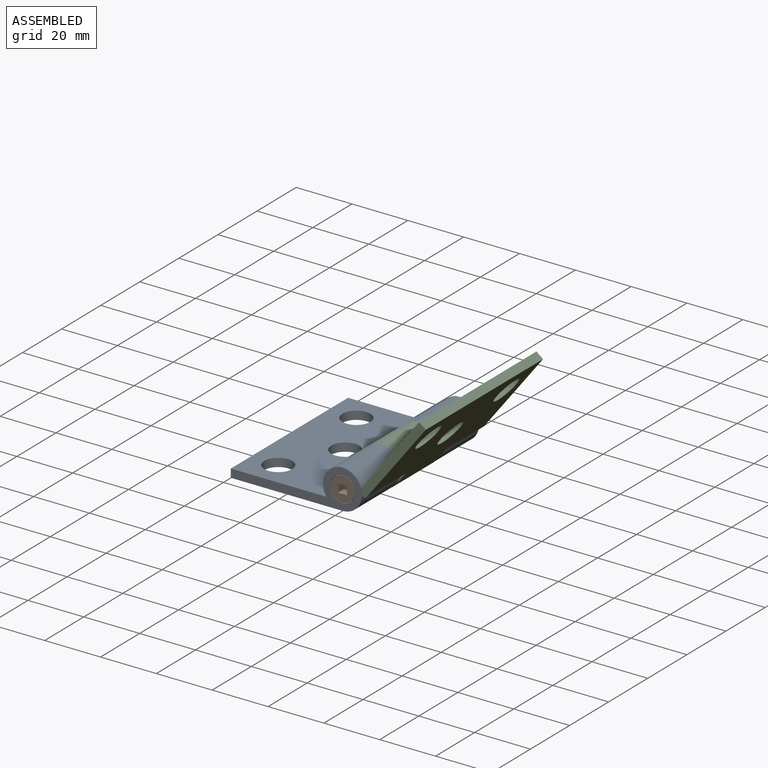
[diagram: assembled view]
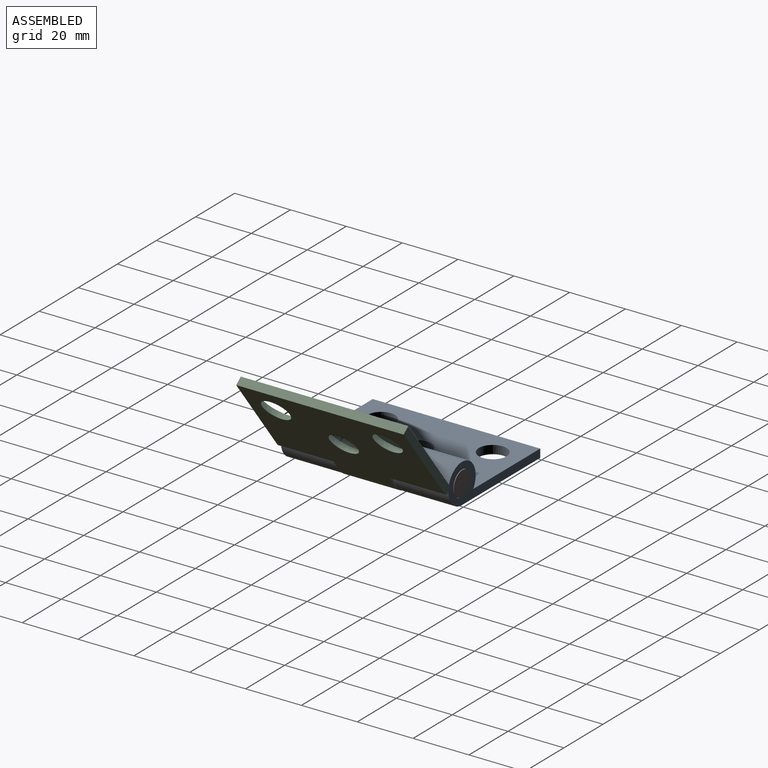
[diagram: assembled view, second angle]
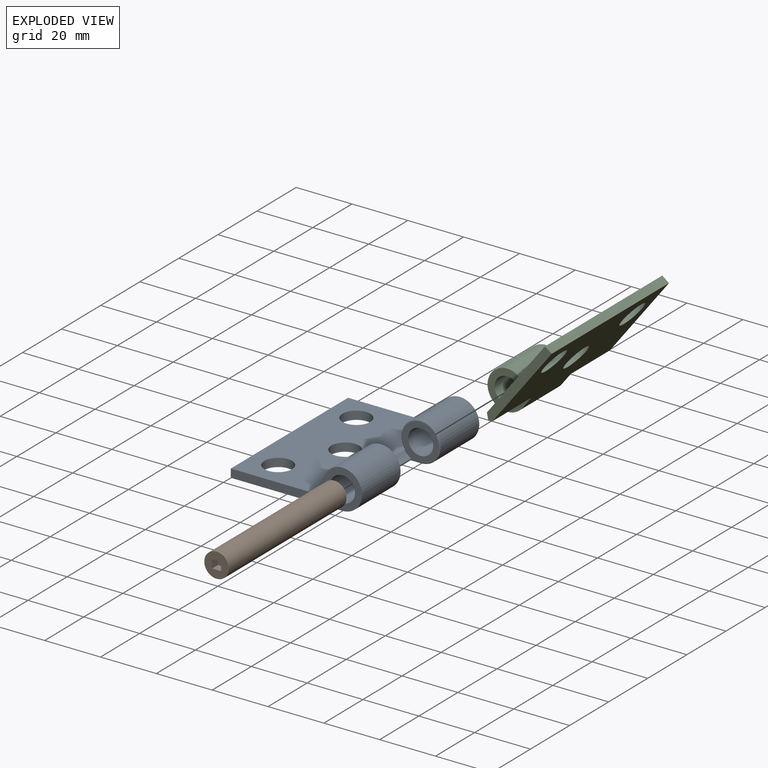
[diagram: exploded view]
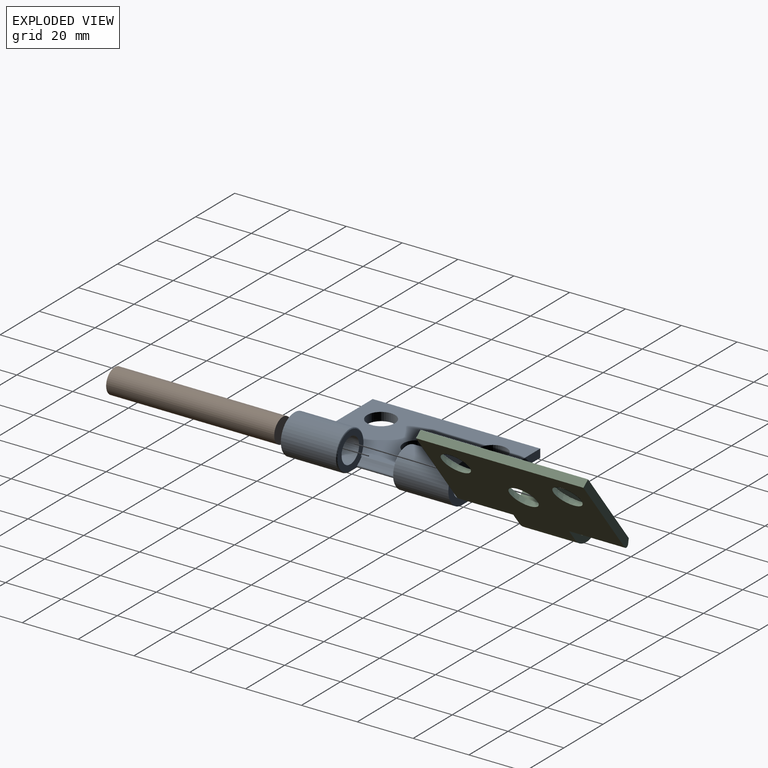
[diagram: exploded view, second angle]
ASSEMBLY  parts=3 mates=2
PART A: 21 faces, bbox 47.6x60x15.2 mm
  f0: plane 60x40mm, normal (0,0,-1), area 2082.5mm2, adj f2,f4,f5,f7,f8,f9,f10,f11
  f1: plane 60x34.75mm, normal (0,0,1), area 1812.2mm2, adj f2,f4,f5,f7,f8,f9,f10,f11
  f2: cylinder r=7mm len=19.6mm, axis (0,1,0), area 730mm2, adj f0,f1,f8,f15
  f3: cylinder r=4.5mm len=20mm, axis (0,1,0), area 565.5mm2, adj f8,f13
  f4: cylinder r=7mm len=19.6mm, axis (0,1,0), area 730mm2, adj f0,f1,f7,f17
  f5: plane 60x3mm, normal (-1,0,0), area 180mm2, adj f0,f1,f7,f8
  f6: cylinder r=4.5mm len=20mm, axis (0,1,0), area 565.5mm2, adj f7,f14
  f7: plane 47x14mm, normal (0,-1,0), area 198.2mm2, adj f0,f1,f4,f5,f6
  f8: plane 47x14mm, normal (0,1,0), area 198.2mm2, adj f0,f1,f2,f3,f5
  f9: cylinder r=5mm len=10mm, axis (0,0,1), area 94.2mm2, adj f0,f1
  f10: cylinder r=5mm len=10mm, axis (0,0,1), area 94.2mm2, adj f0,f1
  f11: cylinder r=5mm len=10mm, axis (0,0,1), area 94.2mm2, adj f0,f1
  f12: cylinder r=7.1mm len=20mm, axis (0,-1,0), area 55.7mm2, adj f13,f14,f19,f20
  f13: plane 13.2x13.2mm, normal (0,-1,0), area 75.8mm2, adj f1,f3,f12,f15,f16,f19,f20
  f14: plane 13.2x13.2mm, normal (0,1,0), area 75.8mm2, adj f1,f6,f12,f17,f18,f19,f20
  f15: torus R=6.6mm, axis (0,-1,0), area 23mm2, adj f1,f2,f13,f16
  f16: cylinder r=0.4mm len=3.94mm, axis (-1,0,0), area 2.3mm2, adj f0,f13,f15,f19
  f17: torus R=6.6mm, axis (0,-1,0), area 23mm2, adj f1,f4,f14,f18
  f18: cylinder r=0.4mm len=3.94mm, axis (1,0,0), area 2.3mm2, adj f0,f14,f17,f19
  f19: cylinder r=0.5mm len=20.8mm, axis (0,-1,0), area 26.2mm2, adj f0,f12,f13,f14,f16,f18
  f20: cylinder r=0.5mm len=20mm, axis (0,-1,0), area 9.4mm2, adj f1,f12,f13,f14
PART B: 8 faces, bbox 8.8x60.2x8.8 mm
  f0: plane 8.8x8.8mm, normal (0,-1,0), area 51mm2, adj f1,f3,f4,f5,f6
  f1: cylinder r=4.4mm len=60.2mm, axis (0,-1,0), area 1664.3mm2, adj f0,f2
  f2: plane 8.8x8.8mm, normal (0,1,0), area 60.8mm2, adj f1
  f3: plane 3.26x3mm, normal (0,0,1), area 9.8mm2, adj f0,f4,f6,f7
  f4: plane 3x3mm, normal (-1,0,0), area 9mm2, adj f0,f3,f5,f7
  f5: plane 3.26x3mm, normal (0,0,-1), area 9.8mm2, adj f0,f4,f6,f7
  f6: plane 3x3mm, normal (1,0,0), area 9mm2, adj f0,f3,f5,f7
  f7: plane 3.26x3mm, normal (0,-1,0), area 9.8mm2, adj f3,f4,f5,f6
PART C: 16 faces, bbox 47x60x14 mm
  f0: cylinder r=7mm len=20mm, axis (0,1,0), area 744.9mm2, adj f1,f2,f6,f8
  f1: plane 60x40mm, normal (0,0,-1), area 1946.7mm2, adj f0,f3,f4,f5,f6,f8,f11,f12
  f2: plane 60x34.26mm, normal (0,0,1), area 1447.3mm2, adj f0,f3,f4,f5,f6,f7,f8,f9
  f3: plane 60x3mm, normal (1,0,0), area 180mm2, adj f1,f2,f4,f5
  f4: plane 35.56x3mm, normal (0,-1,0), area 105.2mm2, adj f1,f2,f3,f7,f14
  f5: plane 35.56x3mm, normal (0,1,0), area 105.2mm2, adj f1,f2,f3,f9,f15
  f6: plane 14x14mm, normal (0,-1,0), area 93mm2, adj f0,f1,f2,f7,f10,f14
  f7: cylinder r=7.1mm len=20mm, axis (0,-1,0), area 33.5mm2, adj f2,f4,f6,f14
  f8: plane 14x14mm, normal (0,1,0), area 93mm2, adj f0,f1,f2,f9,f10,f15
  f9: cylinder r=7.1mm len=20mm, axis (0,-1,0), area 33.5mm2, adj f2,f5,f8,f15
  f10: cylinder r=4.5mm len=20mm, axis (0,1,0), area 565.5mm2, adj f6,f8
  f11: cone r=5mm half-angle=45deg, axis (0,0,1), area 173.3mm2, adj f1,f2
  f12: cone r=5mm half-angle=45deg, axis (0,0,1), area 173.3mm2, adj f1,f2
  f13: cone r=8mm half-angle=45deg, axis (0,0,1), area 173.3mm2, adj f1,f2
  f14: cylinder r=1mm len=20mm, axis (0,-1,0), area 48.1mm2, adj f1,f4,f6,f7
  f15: cylinder r=1mm len=20mm, axis (0,-1,0), area 48.1mm2, adj f1,f5,f8,f9
PLACE A t=(2,0.9,-71.5)mm
PLACE B t=(2,0.9,-71.5)mm
PLACE C rot(axis=(0,-1,0),52.3deg) t=(7.42,0.9,-68.97)mm
MATE revolute A.f3 <-> B.f1  axis (0,-1,0) through (2,-59.1,-64.5)mm
MATE revolute C.f7 <-> A.f14  axis (0,1,0) through (1.88,-39.1,-64.69)mm
